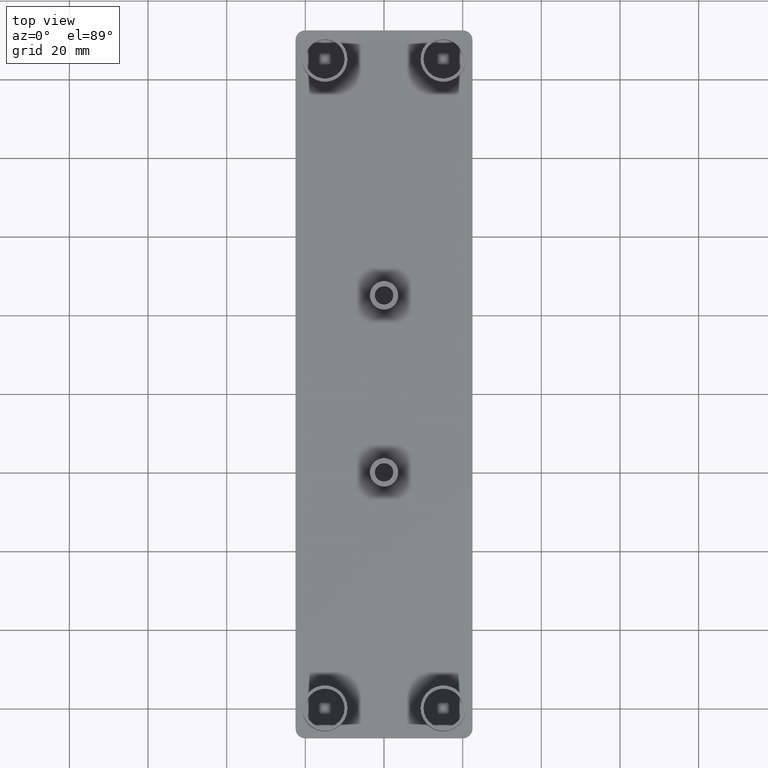
[diagram: clean part render]
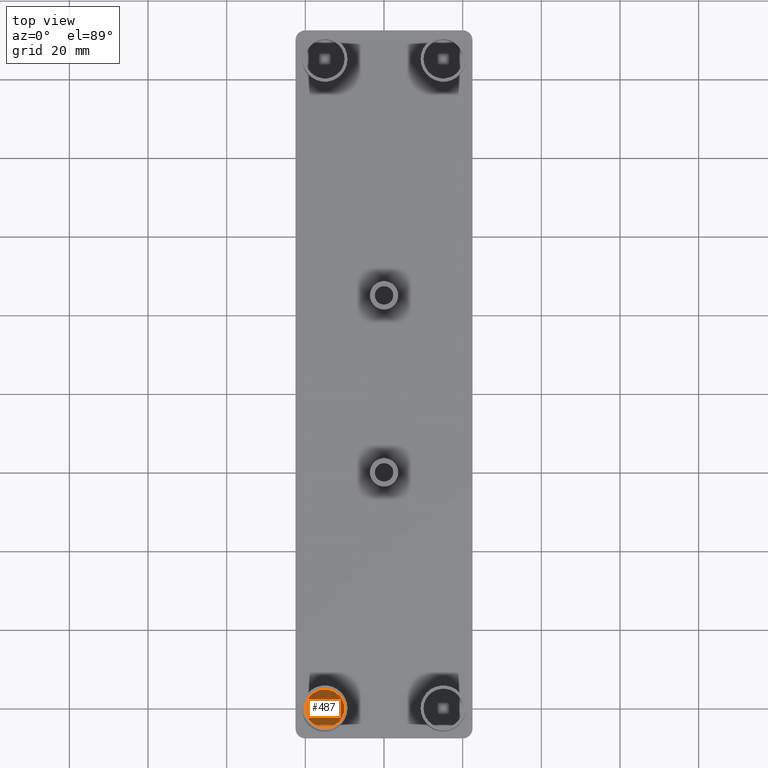
[diagram: same view with one face highlighted and labeled with its STEP entity id]
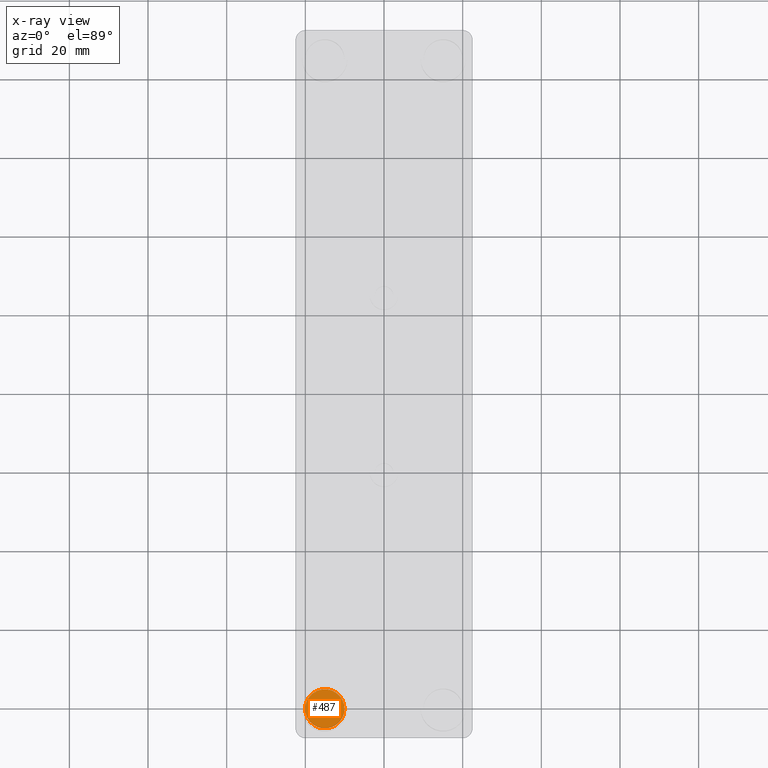
[diagram: x-ray of the same camera — body ghosted, the highlighted face saturated]
A machine part, top view. The second image highlights one B-rep face of the part: STEP entity #487.
The next image is the same camera in x-ray: the body ghosted, the highlighted face saturated — about 0% of this face is hidden behind the body in this view.
In plain terms, the highlighted planar face has unit normal (0, 0, 1).
Its self-contained STEP definition (entity closure, byte-faithful):
#102=FACE_OUTER_BOUND('',#136,.T.);
#136=EDGE_LOOP('',(#314));
#182=CIRCLE('',#549,4.99999999998);
#214=VERTEX_POINT('',#782);
#254=EDGE_CURVE('',#214,#214,#182,.T.);
#314=ORIENTED_EDGE('',*,*,#254,.F.);
#434=PLANE('',#548);
#487=ADVANCED_FACE('',(#102),#434,.T.);
#548=AXIS2_PLACEMENT_3D('',#781,#624,#625);
#549=AXIS2_PLACEMENT_3D('',#783,#626,#627);
#624=DIRECTION('center_axis',(0.,0.,1.));
#625=DIRECTION('ref_axis',(1.,0.,0.));
#626=DIRECTION('center_axis',(0.,0.,-1.));
#627=DIRECTION('ref_axis',(1.,0.,0.));
#781=CARTESIAN_POINT('Origin',(-27.0000096836652,-85.500041855611,0.));
#782=CARTESIAN_POINT('',(-20.0500189999161,-60.0500449997599,0.));
#783=CARTESIAN_POINT('Origin',(-15.0500189999361,-60.0500449997599,0.));